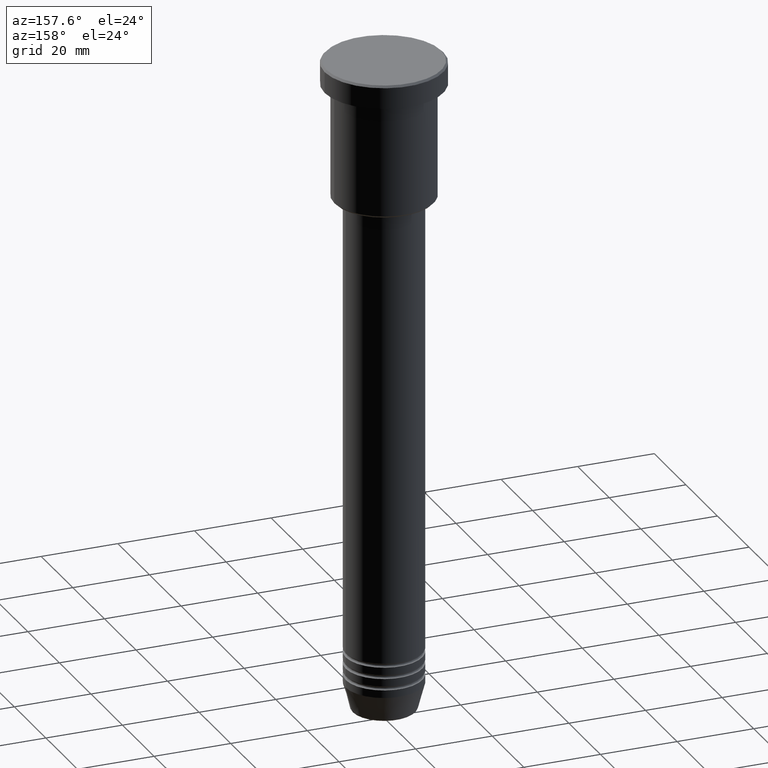
[diagram: clean part render]
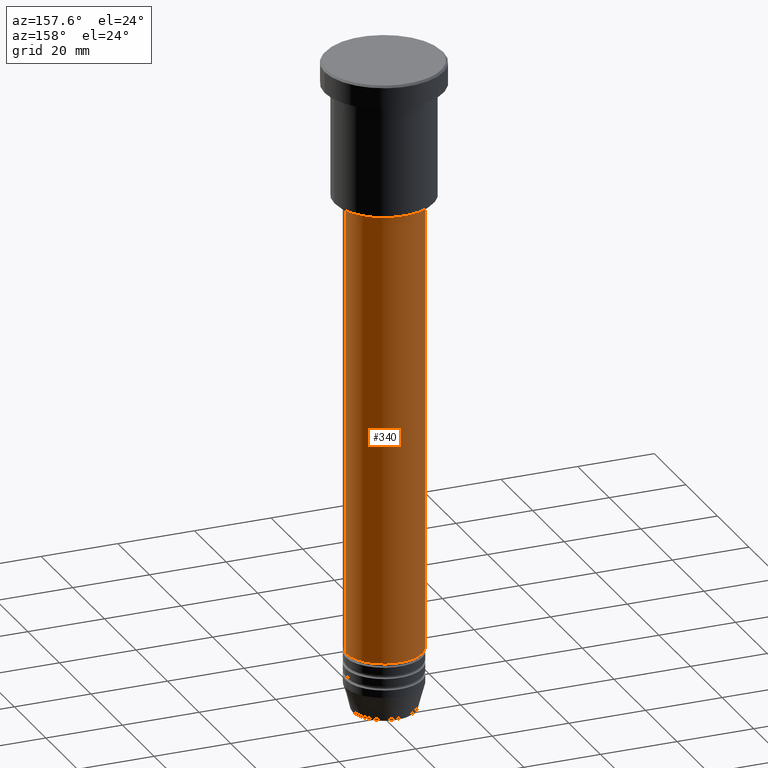
[diagram: same view with one face highlighted and labeled with its STEP entity id]
A machine part, auxiliary view. The second image highlights one B-rep face of the part: STEP entity #340.
In plain terms, the highlighted cylindrical surface (partial cylindrical patch) has radius 10 mm, axis along (-0, -0, 1).
Its self-contained STEP definition (entity closure, byte-faithful):
#12 = DIRECTION ( 'NONE',  ( -0.000000000000000000, -0.000000000000000000, 1.000000000000000000 ) ) ;
#21 = ORIENTED_EDGE ( 'NONE', *, *, #729, .F. ) ;
#47 = CARTESIAN_POINT ( 'NONE',  ( 0.000000000000000000, 0.000000000000000000, 0.000000000000000000 ) ) ;
#72 = CARTESIAN_POINT ( 'NONE',  ( 0.000000000000000000, 0.000000000000000000, -37.00000000000000000 ) ) ;
#165 = CARTESIAN_POINT ( 'NONE',  ( -10.00000000000000000, 1.224646799147353256E-15, -37.00000000000000000 ) ) ;
#167 = EDGE_CURVE ( 'NONE', #1128, #1037, #1094, .T. ) ;
#187 = DIRECTION ( 'NONE',  ( -0.000000000000000000, -0.000000000000000000, 1.000000000000000000 ) ) ;
#268 = CARTESIAN_POINT ( 'NONE',  ( 10.00000000000000000, 0.000000000000000000, 0.000000000000000000 ) ) ;
#304 = VERTEX_POINT ( 'NONE', #629 ) ;
#328 = CYLINDRICAL_SURFACE ( 'NONE', #1087, 10.00000000000000000 ) ;
#330 = AXIS2_PLACEMENT_3D ( 'NONE', #836, #12, #1177 ) ;
#340 = ADVANCED_FACE ( 'NONE', ( #789 ), #328, .T. ) ;
#376 = ORIENTED_EDGE ( 'NONE', *, *, #167, .F. ) ;
#423 = VECTOR ( 'NONE', #187, 1000.000000000000000 ) ;
#469 = VERTEX_POINT ( 'NONE', #165 ) ;
#529 = DIRECTION ( 'NONE',  ( -0.000000000000000000, -0.000000000000000000, 1.000000000000000000 ) ) ;
#533 = AXIS2_PLACEMENT_3D ( 'NONE', #72, #529, #1148 ) ;
#554 = CIRCLE ( 'NONE', #330, 10.00000000000000000 ) ;
#569 = ORIENTED_EDGE ( 'NONE', *, *, #883, .T. ) ;
#610 = DIRECTION ( 'NONE',  ( -0.000000000000000000, -0.000000000000000000, 1.000000000000000000 ) ) ;
#628 = DIRECTION ( 'NONE',  ( -0.000000000000000000, -0.000000000000000000, 1.000000000000000000 ) ) ;
#629 = CARTESIAN_POINT ( 'NONE',  ( -10.00000000000000000, 1.224646799147353256E-15, -154.9999999999999716 ) ) ;
#710 = CIRCLE ( 'NONE', #533, 10.00000000000000000 ) ;
#711 = LINE ( 'NONE', #1078, #1137 ) ;
#729 = EDGE_CURVE ( 'NONE', #1037, #469, #710, .T. ) ;
#789 = FACE_OUTER_BOUND ( 'NONE', #1123, .T. ) ;
#804 = EDGE_CURVE ( 'NONE', #304, #469, #711, .T. ) ;
#836 = CARTESIAN_POINT ( 'NONE',  ( 0.000000000000000000, 0.000000000000000000, -154.9999999999999716 ) ) ;
#868 = ORIENTED_EDGE ( 'NONE', *, *, #804, .T. ) ;
#883 = EDGE_CURVE ( 'NONE', #1128, #304, #554, .T. ) ;
#894 = DIRECTION ( 'NONE',  ( 1.000000000000000000, 0.000000000000000000, 0.000000000000000000 ) ) ;
#1031 = CARTESIAN_POINT ( 'NONE',  ( 10.00000000000000000, 0.000000000000000000, -37.00000000000000000 ) ) ;
#1037 = VERTEX_POINT ( 'NONE', #1031 ) ;
#1078 = CARTESIAN_POINT ( 'NONE',  ( -10.00000000000000000, 1.224646799147353256E-15, 0.000000000000000000 ) ) ;
#1081 = CARTESIAN_POINT ( 'NONE',  ( 10.00000000000000000, 0.000000000000000000, -154.9999999999999716 ) ) ;
#1087 = AXIS2_PLACEMENT_3D ( 'NONE', #47, #610, #894 ) ;
#1094 = LINE ( 'NONE', #268, #423 ) ;
#1123 = EDGE_LOOP ( 'NONE', ( #569, #868, #21, #376 ) ) ;
#1128 = VERTEX_POINT ( 'NONE', #1081 ) ;
#1137 = VECTOR ( 'NONE', #628, 1000.000000000000000 ) ;
#1148 = DIRECTION ( 'NONE',  ( 1.000000000000000000, 0.000000000000000000, 0.000000000000000000 ) ) ;
#1177 = DIRECTION ( 'NONE',  ( 1.000000000000000000, 0.000000000000000000, 0.000000000000000000 ) ) ;